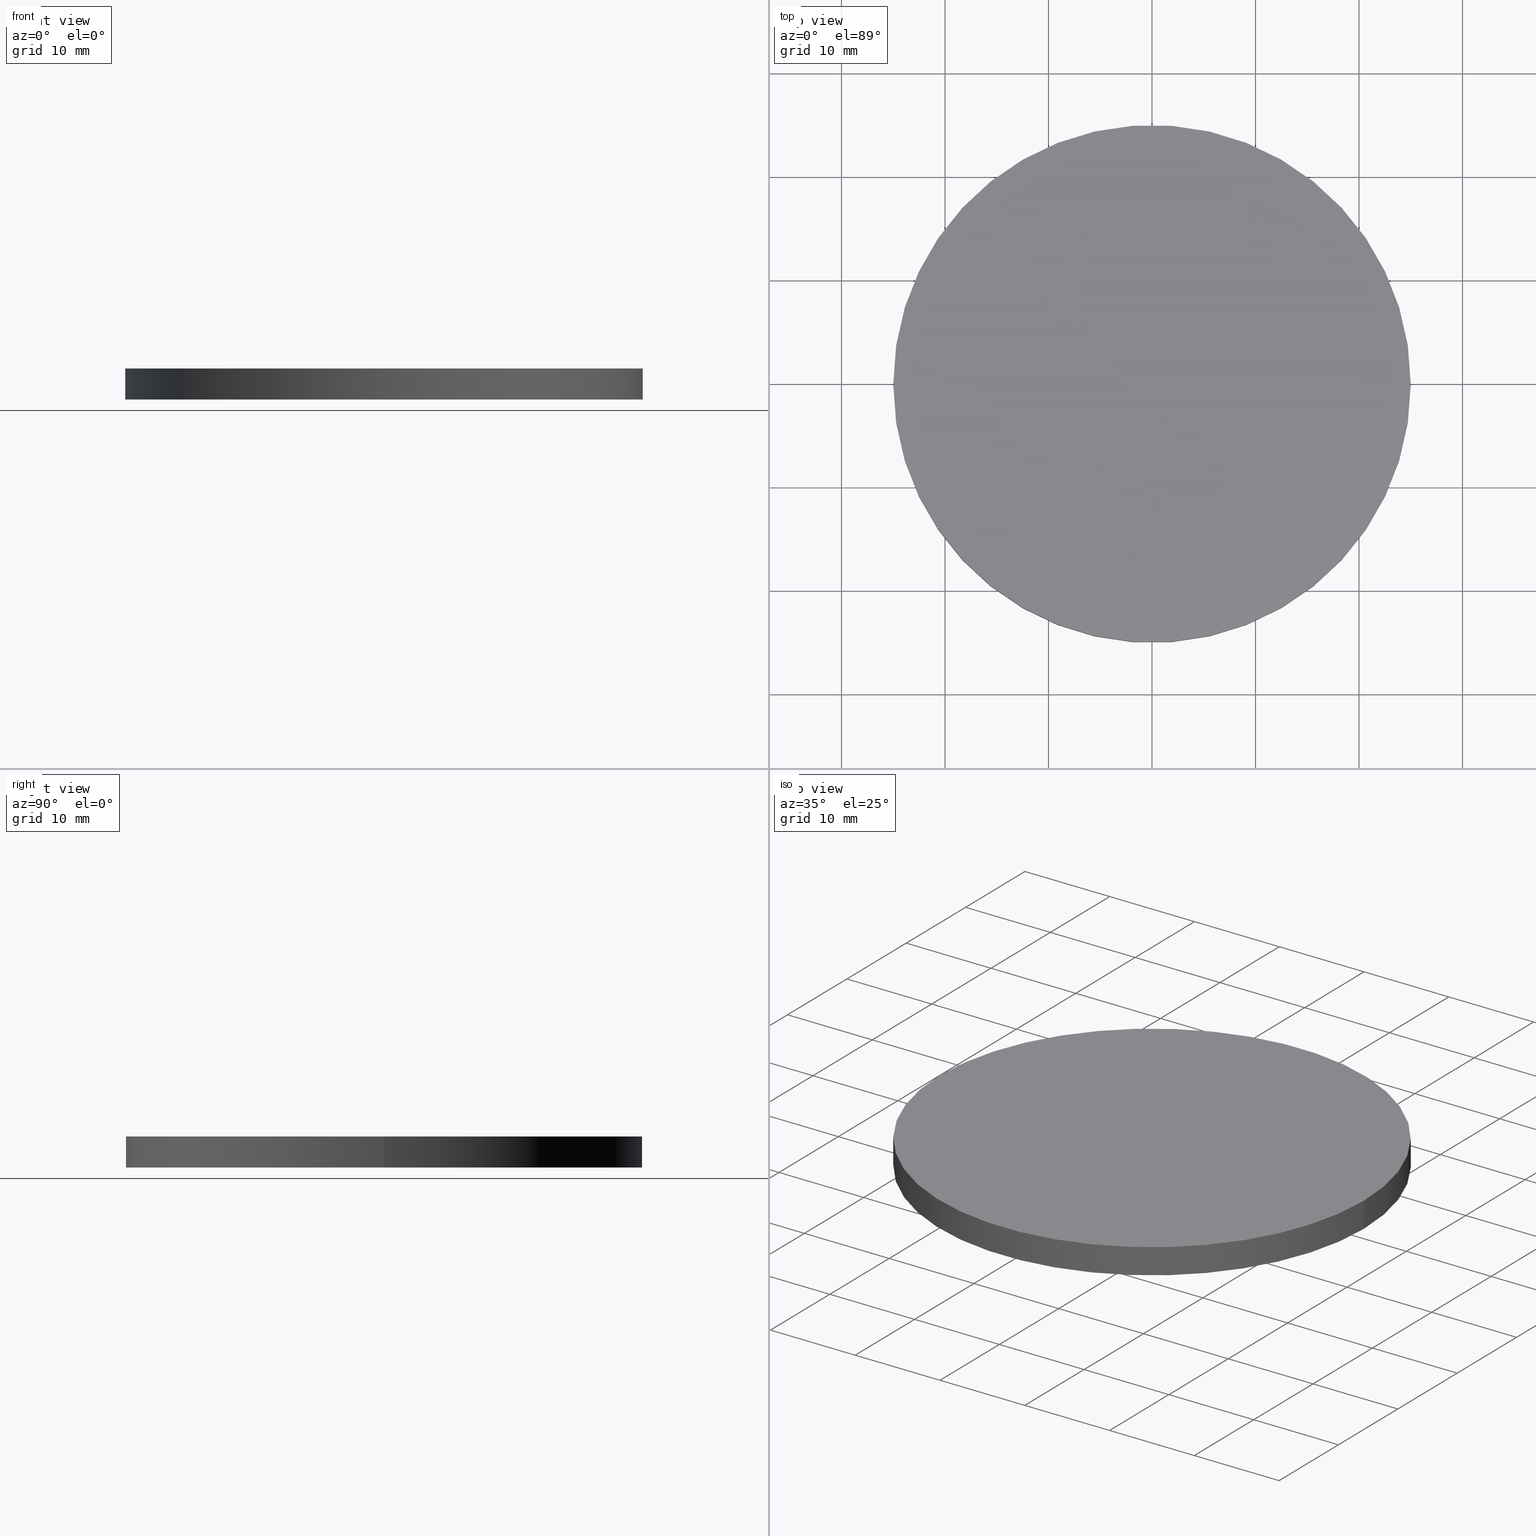
[diagram: canonical four-view strip — front | top / right | iso, engineering-drawing reading convention]
A machine part, canonical four-view strip (front | top / right | iso — engineering-drawing reading convention). The complete STEP part file that produces these views, byte-faithful:
ISO-10303-21;
HEADER;
FILE_DESCRIPTION (( 'STEP AP214' ),
    '1' );
FILE_NAME ('190148.STEP',
    '2019-07-18T02:53:23',
    ( 'user' ),
    ( '΢���й�' ),
    'SwSTEP 2.0',
    'SolidWorks 2016',
    '' );
FILE_SCHEMA (( 'AUTOMOTIVE_DESIGN' ));
ENDSEC;

DATA;
#1 = DIRECTION ( 'NONE',  ( 0.0000000000000000000, 0.0000000000000000000, 1.000000000000000000 ) ) ;
#2 = DIRECTION ( 'NONE',  ( 1.000000000000000000, 0.0000000000000000000, 0.0000000000000000000 ) ) ;
#3 = LINE ( 'NONE', #98, #17 ) ;
#4 = DIRECTION ( 'NONE',  ( -1.000000000000000000, 0.0000000000000000000, 0.0000000000000000000 ) ) ;
#5 = CARTESIAN_POINT ( 'NONE',  ( 0.0000000000000000000, 0.0000000000000000000, 3.000000000000000000 ) ) ;
#6 = AXIS2_PLACEMENT_3D ( 'NONE', #110, #1, #130 ) ;
#7 = VECTOR ( 'NONE', #25, 1000.000000000000000 ) ;
#8 = CIRCLE ( 'NONE', #125, 25.00000000000000000 ) ;
#9 = PRODUCT ( '190148', '190148', '', ( #66 ) ) ;
#10 = DIRECTION ( 'NONE',  ( 0.0000000000000000000, 0.0000000000000000000, 1.000000000000000000 ) ) ;
#11 = DIRECTION ( 'NONE',  ( 1.000000000000000000, 0.0000000000000000000, 0.0000000000000000000 ) ) ;
#12 =( NAMED_UNIT ( * ) PLANE_ANGLE_UNIT ( ) SI_UNIT ( $, .RADIAN. ) );
#13 = APPLICATION_CONTEXT ( 'automotive_design' ) ;
#14 = COLOUR_RGB ( '',1.000000000000000000, 1.000000000000000000, 1.000000000000000000 ) ;
#15 = CARTESIAN_POINT ( 'NONE',  ( -25.00000000000000000, 0.0000000000000000000, 0.0000000000000000000 ) ) ;
#16 = PRODUCT_DEFINITION_CONTEXT ( 'detailed design', #13, 'design' ) ;
#17 = VECTOR ( 'NONE', #78, 1000.000000000000000 ) ;
#18 = UNCERTAINTY_MEASURE_WITH_UNIT (LENGTH_MEASURE( 1.000000000000000100E-005 ), #31, 'distance_accuracy_value', 'NONE');
#19 = ADVANCED_FACE ( 'NONE', ( #129 ), #111, .T. ) ;
#20 = PRESENTATION_STYLE_ASSIGNMENT (( #26 ) ) ;
#21 = DIRECTION ( 'NONE',  ( 0.0000000000000000000, 0.0000000000000000000, 1.000000000000000000 ) ) ;
#22 = EDGE_CURVE ( 'NONE', #109, #134, #3, .T. ) ;
#23 = CARTESIAN_POINT ( 'NONE',  ( 0.0000000000000000000, 0.0000000000000000000, 0.0000000000000000000 ) ) ;
#24 = DIRECTION ( 'NONE',  ( 1.000000000000000000, 0.0000000000000000000, 0.0000000000000000000 ) ) ;
#25 = DIRECTION ( 'NONE',  ( -0.0000000000000000000, -0.0000000000000000000, -1.000000000000000000 ) ) ;
#26 = SURFACE_STYLE_USAGE ( .BOTH. , #96 ) ;
#27 = ORIENTED_EDGE ( 'NONE', *, *, #32, .T. ) ;
#28 = AXIS2_PLACEMENT_3D ( 'NONE', #61, #21, #88 ) ;
#29 = ADVANCED_FACE ( 'NONE', ( #67 ), #37, .T. ) ;
#30 = APPLICATION_PROTOCOL_DEFINITION ( 'draft international standard', 'automotive_design', 1998, #34 ) ;
#31 =( LENGTH_UNIT ( ) NAMED_UNIT ( * ) SI_UNIT ( .MILLI., .METRE. ) );
#32 = EDGE_CURVE ( 'NONE', #39, #94, #57, .T. ) ;
#33 = DIRECTION ( 'NONE',  ( 0.0000000000000000000, 0.0000000000000000000, 1.000000000000000000 ) ) ;
#34 = APPLICATION_CONTEXT ( 'automotive_design' ) ;
#35 = ORIENTED_EDGE ( 'NONE', *, *, #113, .T. ) ;
#36 = SURFACE_STYLE_FILL_AREA ( #43 ) ;
#37 = CYLINDRICAL_SURFACE ( 'NONE', #85, 25.00000000000000000 ) ;
#38 = PRESENTATION_LAYER_ASSIGNMENT (  '', '', ( #102 ) ) ;
#39 = VERTEX_POINT ( 'NONE', #50 ) ;
#40 = FILL_AREA_STYLE_COLOUR ( '', #89 ) ;
#41 = SURFACE_STYLE_FILL_AREA ( #90 ) ;
#42 = DIRECTION ( 'NONE',  ( 1.000000000000000000, 0.0000000000000000000, 0.0000000000000000000 ) ) ;
#43 = FILL_AREA_STYLE ('',( #65 ) ) ;
#44 =( NAMED_UNIT ( * ) SI_UNIT ( $, .STERADIAN. ) SOLID_ANGLE_UNIT ( ) );
#45 =( GEOMETRIC_REPRESENTATION_CONTEXT ( 3 ) GLOBAL_UNCERTAINTY_ASSIGNED_CONTEXT ( ( #139 ) ) GLOBAL_UNIT_ASSIGNED_CONTEXT ( ( #79, #12, #137 ) ) REPRESENTATION_CONTEXT ( 'NONE', 'WORKASPACE' ) );
#46 = SHAPE_DEFINITION_REPRESENTATION ( #128, #123 ) ;
#47 = ORIENTED_EDGE ( 'NONE', *, *, #22, .F. ) ;
#48 = SURFACE_STYLE_USAGE ( .BOTH. , #80 ) ;
#49 = EDGE_LOOP ( 'NONE', ( #47, #56, #27, #83 ) ) ;
#50 = CARTESIAN_POINT ( 'NONE',  ( -25.00000000000000000, 0.0000000000000000000, 3.000000000000000000 ) ) ;
#51 = CYLINDRICAL_SURFACE ( 'NONE', #68, 25.00000000000000000 ) ;
#52 = CARTESIAN_POINT ( 'NONE',  ( 25.00000000000000000, 3.061616997868383000E-015, 3.000000000000000000 ) ) ;
#53 = STYLED_ITEM ( 'NONE', ( #20 ), #71 ) ;
#54 = DIRECTION ( 'NONE',  ( -1.000000000000000000, 0.0000000000000000000, 0.0000000000000000000 ) ) ;
#55 = DIRECTION ( 'NONE',  ( 0.0000000000000000000, 0.0000000000000000000, 1.000000000000000000 ) ) ;
#56 = ORIENTED_EDGE ( 'NONE', *, *, #112, .F. ) ;
#57 = LINE ( 'NONE', #100, #7 ) ;
#58 = PRODUCT_DEFINITION ( 'δ֪', '', #95, #16 ) ;
#59 = CLOSED_SHELL ( 'NONE', ( #73, #29, #19, #116 ) ) ;
#60 = AXIS2_PLACEMENT_3D ( 'NONE', #101, #132, #42 ) ;
#61 = CARTESIAN_POINT ( 'NONE',  ( 0.0000000000000000000, 0.0000000000000000000, 0.0000000000000000000 ) ) ;
#62 =( NAMED_UNIT ( * ) SI_UNIT ( $, .STERADIAN. ) SOLID_ANGLE_UNIT ( ) );
#63 = CIRCLE ( 'NONE', #76, 25.00000000000000000 ) ;
#64 = AXIS2_PLACEMENT_3D ( 'NONE', #23, #55, #2 ) ;
#65 = FILL_AREA_STYLE_COLOUR ( '', #14 ) ;
#66 = PRODUCT_CONTEXT ( 'NONE', #34, 'mechanical' ) ;
#67 = FACE_OUTER_BOUND ( 'NONE', #49, .T. ) ;
#68 = AXIS2_PLACEMENT_3D ( 'NONE', #5, #119, #4 ) ;
#69 =( GEOMETRIC_REPRESENTATION_CONTEXT ( 3 ) GLOBAL_UNCERTAINTY_ASSIGNED_CONTEXT ( ( #18 ) ) GLOBAL_UNIT_ASSIGNED_CONTEXT ( ( #31, #117, #62 ) ) REPRESENTATION_CONTEXT ( 'NONE', 'WORKASPACE' ) );
#70 = EDGE_CURVE ( 'NONE', #94, #134, #121, .T. ) ;
#71 = MANIFOLD_SOLID_BREP ( '͹̨-����1', #59 ) ;
#72 = ORIENTED_EDGE ( 'NONE', *, *, #112, .T. ) ;
#73 = ADVANCED_FACE ( 'NONE', ( #135 ), #51, .T. ) ;
#74 = CIRCLE ( 'NONE', #122, 25.00000000000000000 ) ;
#75 = PLANE ( 'NONE',  #28 ) ;
#76 = AXIS2_PLACEMENT_3D ( 'NONE', #115, #10, #138 ) ;
#77 = CARTESIAN_POINT ( 'NONE',  ( 0.0000000000000000000, 0.0000000000000000000, 3.000000000000000000 ) ) ;
#78 = DIRECTION ( 'NONE',  ( -0.0000000000000000000, -0.0000000000000000000, -1.000000000000000000 ) ) ;
#79 =( LENGTH_UNIT ( ) NAMED_UNIT ( * ) SI_UNIT ( .MILLI., .METRE. ) );
#80 = SURFACE_SIDE_STYLE ('',( #41 ) ) ;
#81 =( GEOMETRIC_REPRESENTATION_CONTEXT ( 3 ) GLOBAL_UNCERTAINTY_ASSIGNED_CONTEXT ( ( #87 ) ) GLOBAL_UNIT_ASSIGNED_CONTEXT ( ( #99, #118, #44 ) ) REPRESENTATION_CONTEXT ( 'NONE', 'WORKASPACE' ) );
#82 = EDGE_CURVE ( 'NONE', #109, #39, #74, .T. ) ;
#83 = ORIENTED_EDGE ( 'NONE', *, *, #70, .T. ) ;
#84 = PRESENTATION_STYLE_ASSIGNMENT (( #48 ) ) ;
#85 = AXIS2_PLACEMENT_3D ( 'NONE', #107, #131, #54 ) ;
#86 = PRODUCT_RELATED_PRODUCT_CATEGORY ( 'part', '', ( #9 ) ) ;
#87 = UNCERTAINTY_MEASURE_WITH_UNIT (LENGTH_MEASURE( 1.000000000000000100E-005 ), #99, 'distance_accuracy_value', 'NONE');
#88 = DIRECTION ( 'NONE',  ( 1.000000000000000000, 0.0000000000000000000, -0.0000000000000000000 ) ) ;
#89 = COLOUR_RGB ( '',1.000000000000000000, 1.000000000000000000, 1.000000000000000000 ) ;
#90 = FILL_AREA_STYLE ('',( #40 ) ) ;
#91 = APPLICATION_PROTOCOL_DEFINITION ( 'draft international standard', 'automotive_design', 1998, #13 ) ;
#92 = ORIENTED_EDGE ( 'NONE', *, *, #70, .F. ) ;
#93 = MECHANICAL_DESIGN_GEOMETRIC_PRESENTATION_REPRESENTATION (  '', ( #53 ), #45 ) ;
#94 = VERTEX_POINT ( 'NONE', #15 ) ;
#95 = PRODUCT_DEFINITION_FORMATION_WITH_SPECIFIED_SOURCE ( '�κ�', '', #9, .NOT_KNOWN. ) ;
#96 = SURFACE_SIDE_STYLE ('',( #36 ) ) ;
#97 = ORIENTED_EDGE ( 'NONE', *, *, #113, .F. ) ;
#98 = CARTESIAN_POINT ( 'NONE',  ( 25.00000000000000000, 3.061616997868383000E-015, 3.000000000000000000 ) ) ;
#99 =( LENGTH_UNIT ( ) NAMED_UNIT ( * ) SI_UNIT ( .MILLI., .METRE. ) );
#100 = CARTESIAN_POINT ( 'NONE',  ( -25.00000000000000000, 0.0000000000000000000, 3.000000000000000000 ) ) ;
#101 = CARTESIAN_POINT ( 'NONE',  ( 0.0000000000000000000, 0.0000000000000000000, 0.0000000000000000000 ) ) ;
#102 = STYLED_ITEM ( 'NONE', ( #84 ), #123 ) ;
#103 = ORIENTED_EDGE ( 'NONE', *, *, #32, .F. ) ;
#104 = PRESENTATION_LAYER_ASSIGNMENT (  '', '', ( #53 ) ) ;
#105 = EDGE_LOOP ( 'NONE', ( #92, #97 ) ) ;
#106 = CARTESIAN_POINT ( 'NONE',  ( 25.00000000000000000, 3.061616997868383000E-015, 0.0000000000000000000 ) ) ;
#107 = CARTESIAN_POINT ( 'NONE',  ( 0.0000000000000000000, 0.0000000000000000000, 3.000000000000000000 ) ) ;
#108 = CARTESIAN_POINT ( 'NONE',  ( 0.0000000000000000000, 0.0000000000000000000, 3.000000000000000000 ) ) ;
#109 = VERTEX_POINT ( 'NONE', #52 ) ;
#110 = CARTESIAN_POINT ( 'NONE',  ( 0.0000000000000000000, 0.0000000000000000000, 3.000000000000000000 ) ) ;
#111 = PLANE ( 'NONE',  #6 ) ;
#112 = EDGE_CURVE ( 'NONE', #39, #109, #8, .T. ) ;
#113 = EDGE_CURVE ( 'NONE', #134, #94, #63, .T. ) ;
#114 = ORIENTED_EDGE ( 'NONE', *, *, #22, .T. ) ;
#115 = CARTESIAN_POINT ( 'NONE',  ( 0.0000000000000000000, 0.0000000000000000000, 0.0000000000000000000 ) ) ;
#116 = ADVANCED_FACE ( 'NONE', ( #127 ), #75, .F. ) ;
#117 =( NAMED_UNIT ( * ) PLANE_ANGLE_UNIT ( ) SI_UNIT ( $, .RADIAN. ) );
#118 =( NAMED_UNIT ( * ) PLANE_ANGLE_UNIT ( ) SI_UNIT ( $, .RADIAN. ) );
#119 = DIRECTION ( 'NONE',  ( -0.0000000000000000000, -0.0000000000000000000, -1.000000000000000000 ) ) ;
#120 = EDGE_LOOP ( 'NONE', ( #133, #114, #35, #103 ) ) ;
#121 = CIRCLE ( 'NONE', #60, 25.00000000000000000 ) ;
#122 = AXIS2_PLACEMENT_3D ( 'NONE', #108, #33, #24 ) ;
#123 = ADVANCED_BREP_SHAPE_REPRESENTATION ( '190148', ( #71, #64 ), #69 ) ;
#124 = ORIENTED_EDGE ( 'NONE', *, *, #82, .T. ) ;
#125 = AXIS2_PLACEMENT_3D ( 'NONE', #77, #140, #11 ) ;
#126 = MECHANICAL_DESIGN_GEOMETRIC_PRESENTATION_REPRESENTATION (  '', ( #102 ), #81 ) ;
#127 = FACE_OUTER_BOUND ( 'NONE', #105, .T. ) ;
#128 = PRODUCT_DEFINITION_SHAPE ( 'NONE', 'NONE',  #58 ) ;
#129 = FACE_OUTER_BOUND ( 'NONE', #136, .T. ) ;
#130 = DIRECTION ( 'NONE',  ( 1.000000000000000000, 0.0000000000000000000, -0.0000000000000000000 ) ) ;
#131 = DIRECTION ( 'NONE',  ( -0.0000000000000000000, -0.0000000000000000000, -1.000000000000000000 ) ) ;
#132 = DIRECTION ( 'NONE',  ( 0.0000000000000000000, 0.0000000000000000000, 1.000000000000000000 ) ) ;
#133 = ORIENTED_EDGE ( 'NONE', *, *, #82, .F. ) ;
#134 = VERTEX_POINT ( 'NONE', #106 ) ;
#135 = FACE_OUTER_BOUND ( 'NONE', #120, .T. ) ;
#136 = EDGE_LOOP ( 'NONE', ( #72, #124 ) ) ;
#137 =( NAMED_UNIT ( * ) SI_UNIT ( $, .STERADIAN. ) SOLID_ANGLE_UNIT ( ) );
#138 = DIRECTION ( 'NONE',  ( 1.000000000000000000, 0.0000000000000000000, 0.0000000000000000000 ) ) ;
#139 = UNCERTAINTY_MEASURE_WITH_UNIT (LENGTH_MEASURE( 1.000000000000000100E-005 ), #79, 'distance_accuracy_value', 'NONE');
#140 = DIRECTION ( 'NONE',  ( 0.0000000000000000000, 0.0000000000000000000, 1.000000000000000000 ) ) ;
ENDSEC;
END-ISO-10303-21;
